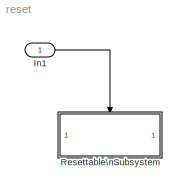
MODEL reset
KIND model
BLOCK [Inport] In1
  IconDisplay = Port number
  SID = 13
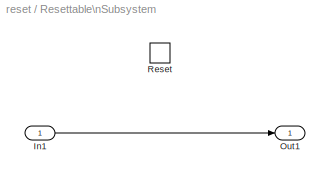
BLOCK [SubSystem] Resettable\nSubsystem
  Ports = [1, 1, 0, 0, 0, 0, 0, 0, 1]
  RequestExecContextInheritance = off
  SID = 7
  TreatAsAtomicUnit = on
  Variant = off
BLOCK [Inport] Resettable\nSubsystem/In1
  IconDisplay = Port number
  SID = 8
BLOCK [Outport] Resettable\nSubsystem/Out1
  IconDisplay = Port number
  SID = 10
BLOCK [ResetPort] Resettable\nSubsystem/Reset
  DisableCoverage = on
  SID = 9
LINE In1:1 -> Resettable\nSubsystem:Reset
LINE Resettable\nSubsystem/In1:1 -> Resettable\nSubsystem/Out1:1
